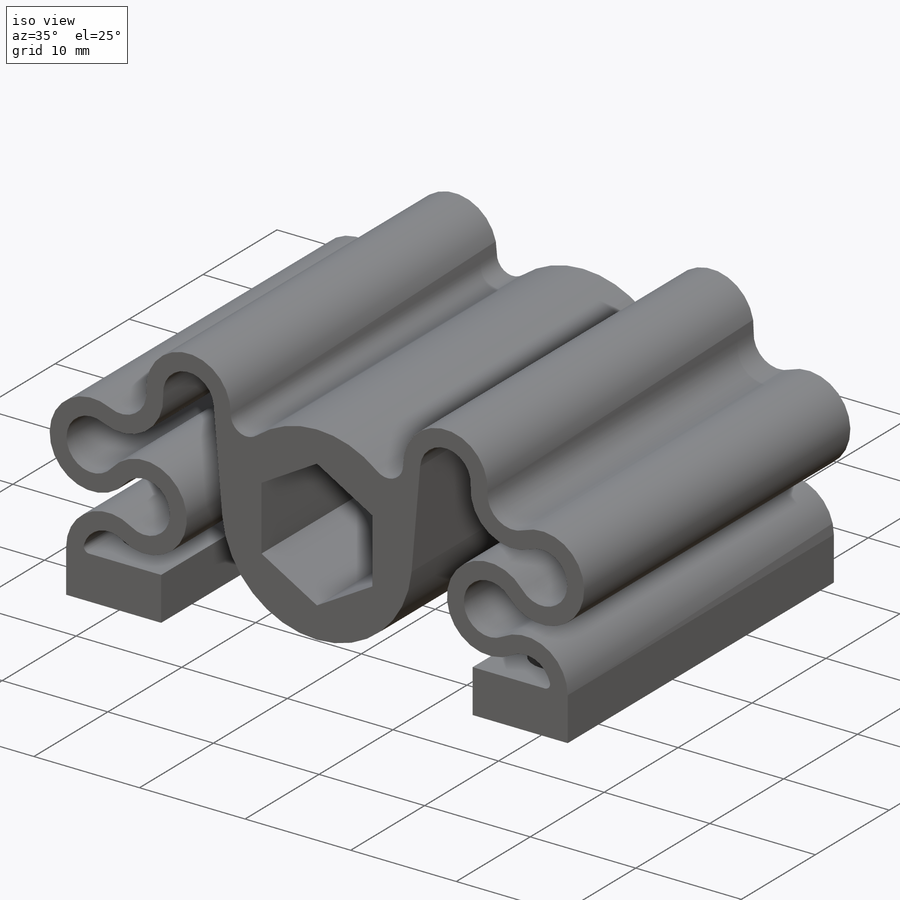
[diagram: iso view]
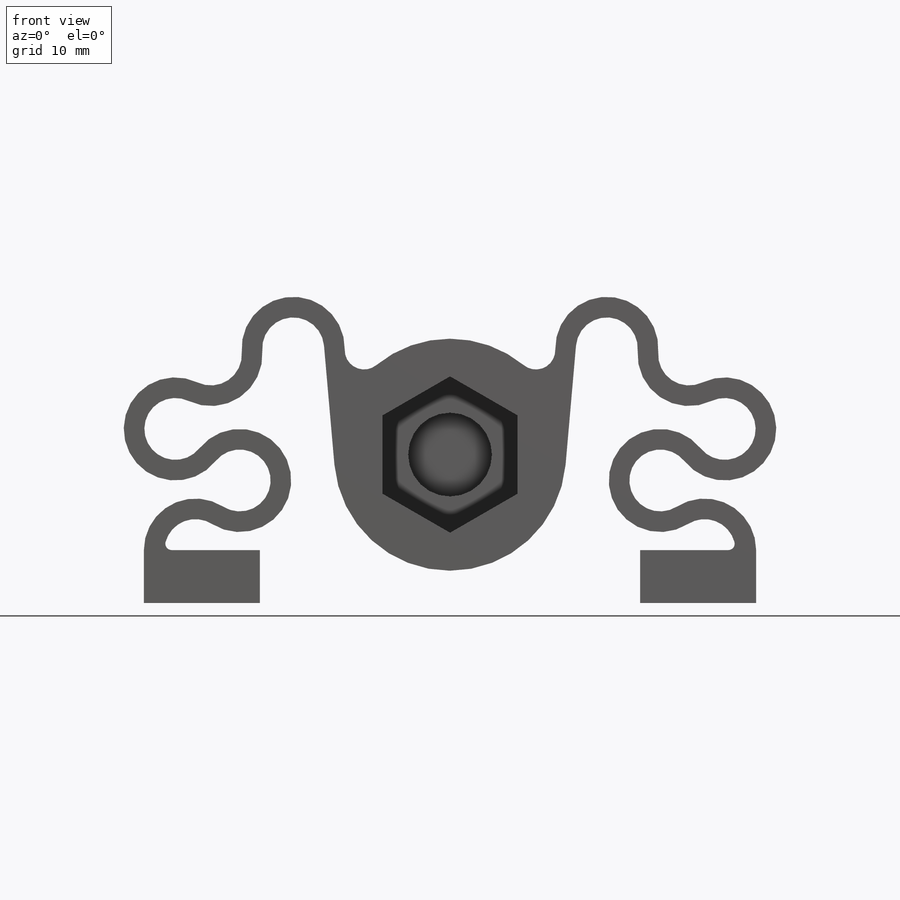
[diagram: front view]
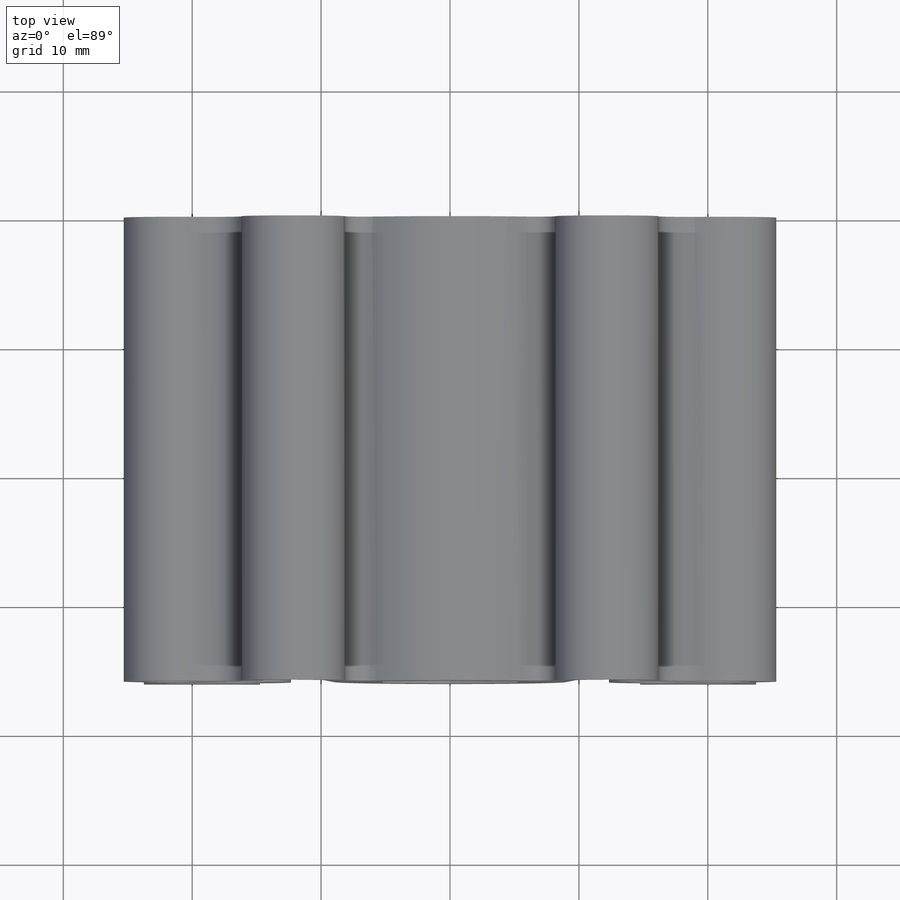
[diagram: top view]
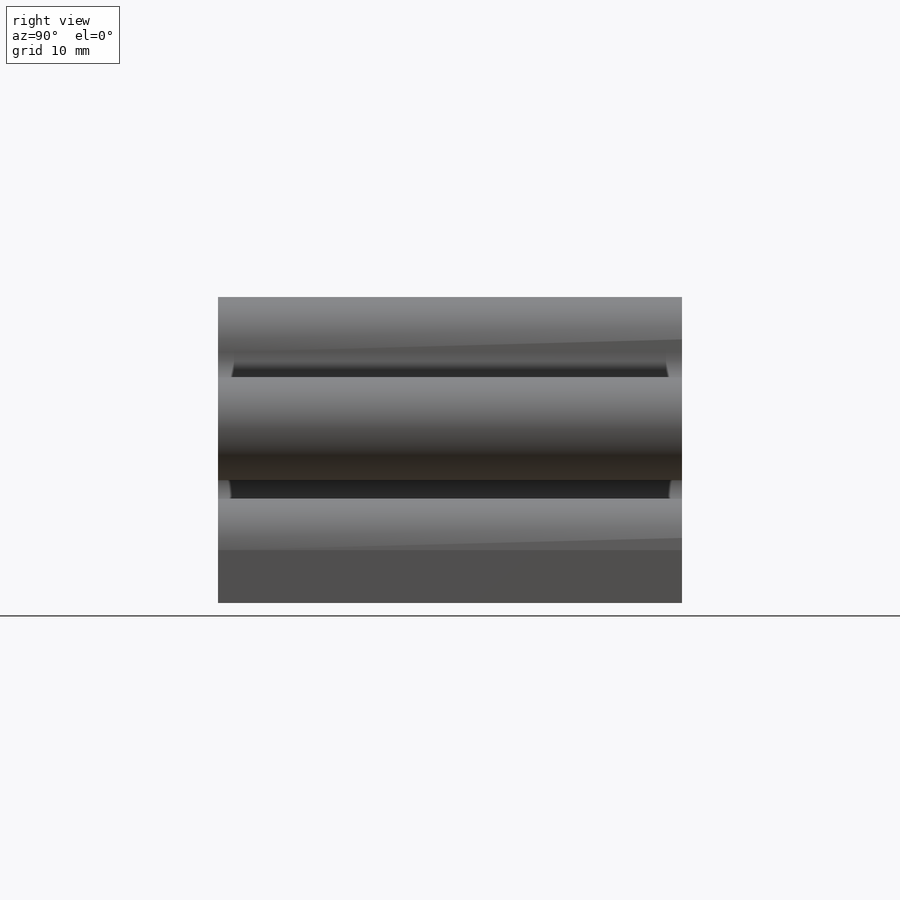
[diagram: right view]
SOLIDWORKS PART (.sldprt)
format: sldprt  version: not decoded by parser v0  size: 425,472 bytes
history: native  units: mm
features: sketch x5, cut_extrude x3, extrude x2, material x1, chamfer x1 (+11 scaffold rows collapsed)
feature tree (23):
  scaffold x11  (default folders/planes/origin — collapsed)
  material  "Material <not specified>"
  sketch  "Sketch1"  dims[c1.D5=6.5mm c1.D6=18.0mm c1.D7=10.0mm c1.D8=10.668mm c1.D9=~3.626484mm c1.D10=8.0mm c1.D11=1.0mm c1.D15=0.5mm c1.D14=2.5mm c2.D11=1.5mm c2.D1=11.5mm c2.D2=47.5mm c2.D3=9.0mm c2.D4=4.1mm c2.D8=~5.773503mm c2.D9=1.6mm c2.D12=15.9mm c2.D13=3.0mm c3.D12=15.8mm c3.D14=5.0mm c4.D12=5.0mm c4.D13=16.0mm c4.D14=6.0mm c4.D8=12.0mm c5.D8=5.0deg c5.D12=9.0mm c5.D13=9.0mm c5.D14=9.0mm c6.D12=9.5mm c6.D13=13.5mm c6.D14=19.75mm]
  extrude  "Boss-Extrude1"  Depth=36mm
  sketch  "Sketch2"  dims[D3=5.2mm D1=38.45mm D2=25.0mm]
  cut_extrude  "Cut-Extrude1"  Depth=4.2mm
  sketch  "Sketch5"  dims[D1=10.5mm]
  cut_extrude  "Cut-Extrude3"  Depth=7mm
  sketch  "Sketch3"  dims[c1.D1=~8.43873mm c2.D1=50.0deg c2.D2=9.0mm c3.D2=50.0deg c3.D1=~7.475683mm]
  cut_extrude  "Cut-Extrude2"  Depth=24mm
  sketch  "Sketch6"
  extrude  "Boss-Extrude2"  Depth=0.4mm
  chamfer  "Chamfer1"  Distance=1mm Angle=45deg
decode coverage: 10 of 11 modeling features carry decoded parameters
note: ~ marks probable driven/reference dimensions
note: suppression state not decoded; provenance and decode notes live in map.json
